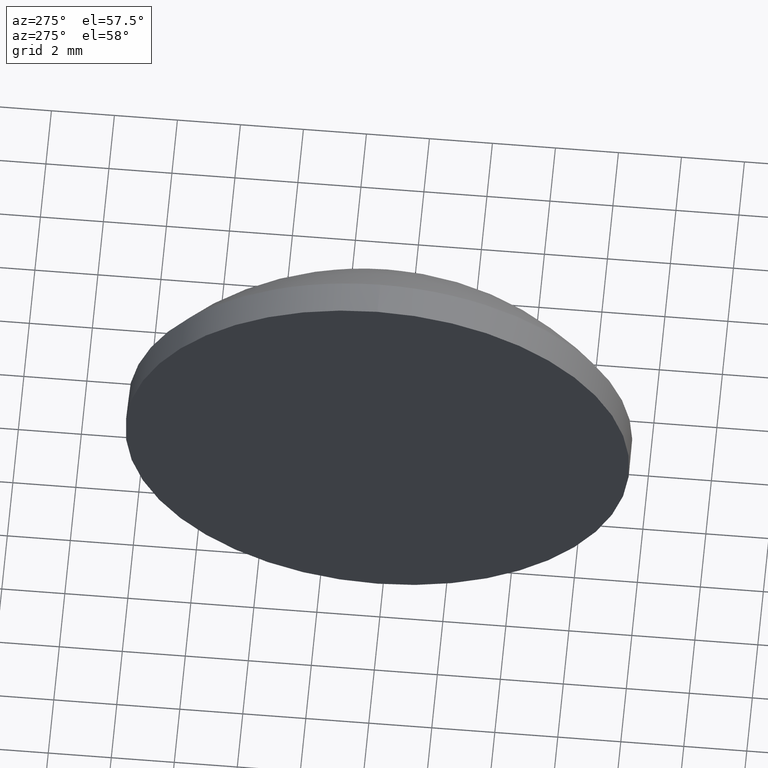
[diagram: clean part render]
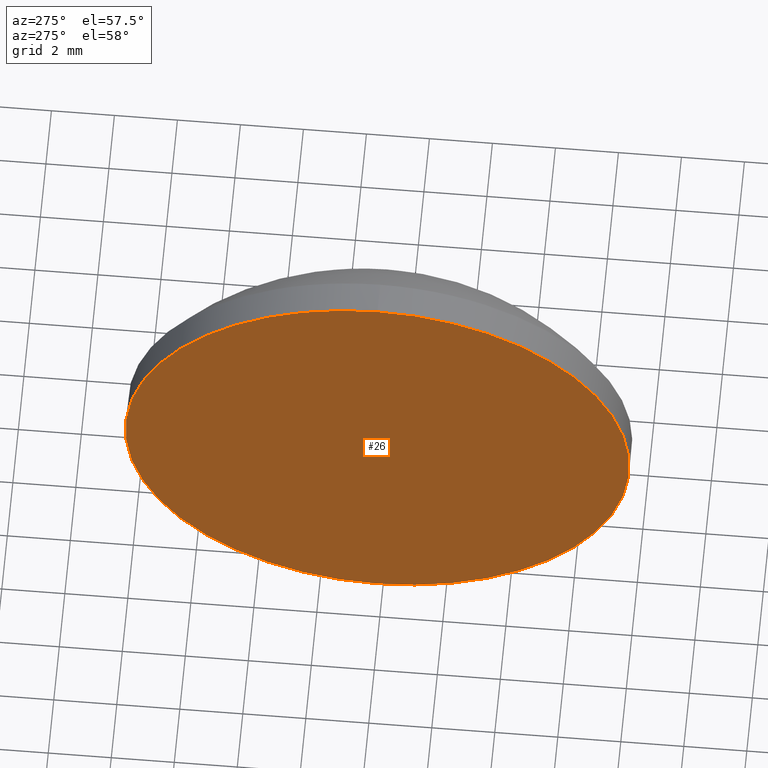
[diagram: same view with one face highlighted and labeled with its STEP entity id]
A machine part, auxiliary view. The second image highlights one B-rep face of the part: STEP entity #26.
In plain terms, the highlighted planar face has unit normal (1, 0, 0).
Its self-contained STEP definition (entity closure, byte-faithful):
#7 = DIRECTION ( 'NONE',  ( 1.000000000000000000, 0.0000000000000000000, 0.0000000000000000000 ) ) ;
#11 = AXIS2_PLACEMENT_3D ( 'NONE', #92, #162, #81 ) ;
#20 = VERTEX_POINT ( 'NONE', #119 ) ;
#26 = ADVANCED_FACE ( 'NONE', ( #123 ), #63, .F. ) ;
#37 = CARTESIAN_POINT ( 'NONE',  ( 377.0121735062485300, -7.833785246306179700, 8.000000000000001800 ) ) ;
#38 = AXIS2_PLACEMENT_3D ( 'NONE', #163, #7, #109 ) ;
#46 = AXIS2_PLACEMENT_3D ( 'NONE', #147, #48, #77 ) ;
#48 = DIRECTION ( 'NONE',  ( -1.000000000000000000, -0.0000000000000000000, -0.0000000000000000000 ) ) ;
#49 = EDGE_CURVE ( 'NONE', #142, #20, #136, .T. ) ;
#63 = PLANE ( 'NONE',  #38 ) ;
#65 = ORIENTED_EDGE ( 'NONE', *, *, #158, .T. ) ;
#77 = DIRECTION ( 'NONE',  ( 0.0000000000000000000, 0.0000000000000000000, 1.000000000000000000 ) ) ;
#81 = DIRECTION ( 'NONE',  ( 0.0000000000000000000, 0.0000000000000000000, 1.000000000000000000 ) ) ;
#92 = CARTESIAN_POINT ( 'NONE',  ( 377.0121735062485300, -7.833785246306179700, 0.0000000000000000000 ) ) ;
#109 = DIRECTION ( 'NONE',  ( 0.0000000000000000000, 0.0000000000000000000, -1.000000000000000000 ) ) ;
#119 = CARTESIAN_POINT ( 'NONE',  ( 377.0121735062485300, -7.833785246306177900, -8.000000000000001800 ) ) ;
#123 = FACE_OUTER_BOUND ( 'NONE', #141, .T. ) ;
#126 = ORIENTED_EDGE ( 'NONE', *, *, #49, .T. ) ;
#136 = CIRCLE ( 'NONE', #46, 8.000000000000001800 ) ;
#141 = EDGE_LOOP ( 'NONE', ( #126, #65 ) ) ;
#142 = VERTEX_POINT ( 'NONE', #37 ) ;
#147 = CARTESIAN_POINT ( 'NONE',  ( 377.0121735062485300, -7.833785246306179700, 0.0000000000000000000 ) ) ;
#158 = EDGE_CURVE ( 'NONE', #20, #142, #166, .T. ) ;
#162 = DIRECTION ( 'NONE',  ( -1.000000000000000000, -0.0000000000000000000, -0.0000000000000000000 ) ) ;
#163 = CARTESIAN_POINT ( 'NONE',  ( 377.0121735062485300, -7.833785246306179700, 0.0000000000000000000 ) ) ;
#166 = CIRCLE ( 'NONE', #11, 8.000000000000001800 ) ;